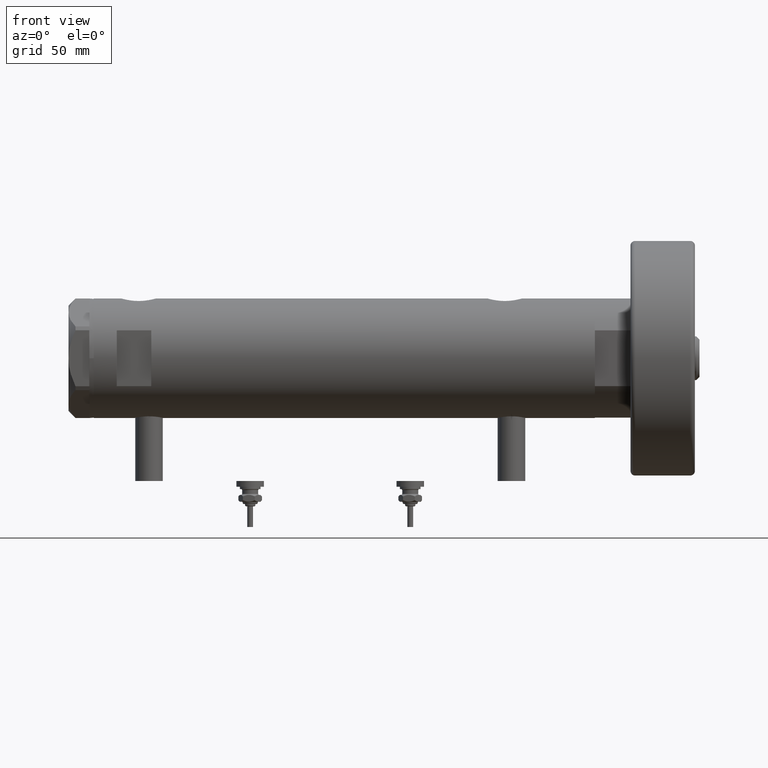
[diagram: clean part render]
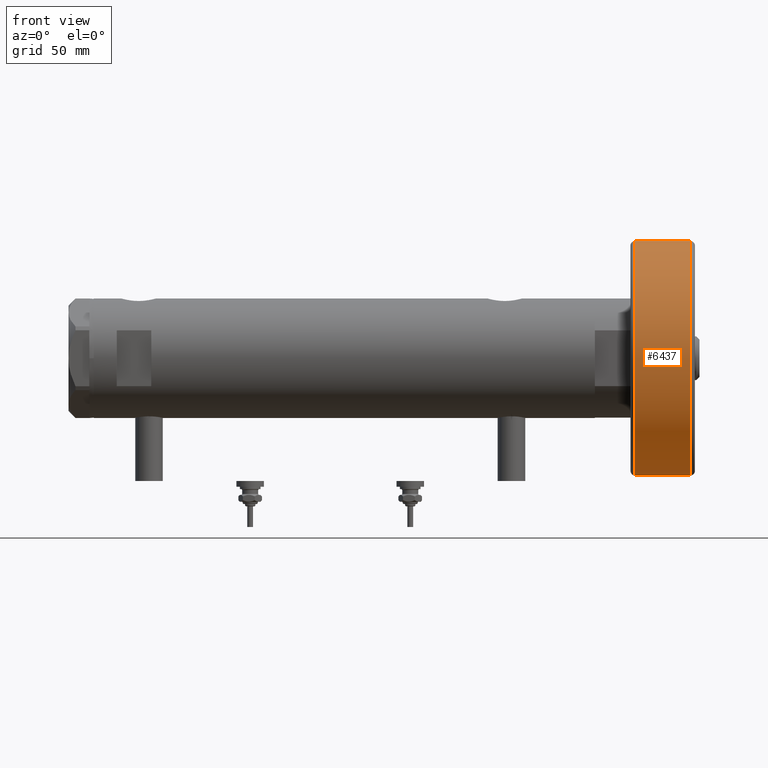
[diagram: same view with one face highlighted and labeled with its STEP entity id]
A machine part, front view. The second image highlights one B-rep face of the part: STEP entity #6437.
In plain terms, the highlighted cylindrical surface (partial cylindrical patch) has radius 51 mm, axis along (-1, -0, 0).
Its self-contained STEP definition (entity closure, byte-faithful):
#100 = DIRECTION ( 'NONE',  ( -0.000000000000000000, -0.000000000000000000, -1.000000000000000000 ) ) ;
#121 = DIRECTION ( 'NONE',  ( 0.000000000000000000, 0.000000000000000000, 1.000000000000000000 ) ) ;
#367 = VERTEX_POINT ( 'NONE', #2523 ) ;
#528 = CIRCLE ( 'NONE', #3151, 50.99999999999999289 ) ;
#608 = CARTESIAN_POINT ( 'NONE',  ( 0.000000000000000000, 0.000000000000000000, 1.999999999999998224 ) ) ;
#972 = CARTESIAN_POINT ( 'NONE',  ( 0.000000000000000000, 0.000000000000000000, 26.00000000000000355 ) ) ;
#1113 = CARTESIAN_POINT ( 'NONE',  ( 50.99999999999999289, 6.245698675651499656E-15, 1.999999999999998224 ) ) ;
#1637 = LINE ( 'NONE', #2641, #2387 ) ;
#1641 = CARTESIAN_POINT ( 'NONE',  ( 50.99999999999999289, 6.245698675651499656E-15, 28.00000000000000000 ) ) ;
#2089 = CARTESIAN_POINT ( 'NONE',  ( -50.99999999999999289, 0.000000000000000000, 1.999999999999998224 ) ) ;
#2153 = EDGE_CURVE ( 'NONE', #5592, #6383, #4416, .T. ) ;
#2176 = DIRECTION ( 'NONE',  ( 1.000000000000000000, 0.000000000000000000, 0.000000000000000000 ) ) ;
#2387 = VECTOR ( 'NONE', #6307, 1000.000000000000000 ) ;
#2409 = EDGE_CURVE ( 'NONE', #367, #6383, #6347, .T. ) ;
#2523 = CARTESIAN_POINT ( 'NONE',  ( 50.99999999999999289, 6.245698675651499656E-15, 26.00000000000000355 ) ) ;
#2555 = CARTESIAN_POINT ( 'NONE',  ( 0.000000000000000000, 0.000000000000000000, 28.00000000000000000 ) ) ;
#2625 = CYLINDRICAL_SURFACE ( 'NONE', #2728, 50.99999999999999289 ) ;
#2641 = CARTESIAN_POINT ( 'NONE',  ( -50.99999999999999289, 0.000000000000000000, 28.00000000000000000 ) ) ;
#2728 = AXIS2_PLACEMENT_3D ( 'NONE', #2555, #4621, #3704 ) ;
#3151 = AXIS2_PLACEMENT_3D ( 'NONE', #972, #3198, #5787 ) ;
#3198 = DIRECTION ( 'NONE',  ( -0.000000000000000000, -0.000000000000000000, -1.000000000000000000 ) ) ;
#3251 = ORIENTED_EDGE ( 'NONE', *, *, #4430, .T. ) ;
#3574 = EDGE_CURVE ( 'NONE', #367, #5666, #528, .T. ) ;
#3663 = AXIS2_PLACEMENT_3D ( 'NONE', #608, #121, #2176 ) ;
#3690 = ORIENTED_EDGE ( 'NONE', *, *, #3574, .T. ) ;
#3704 = DIRECTION ( 'NONE',  ( -1.000000000000000000, 0.000000000000000000, 0.000000000000000000 ) ) ;
#3916 = ORIENTED_EDGE ( 'NONE', *, *, #2409, .F. ) ;
#4095 = CARTESIAN_POINT ( 'NONE',  ( -50.99999999999999289, 0.000000000000000000, 26.00000000000000355 ) ) ;
#4207 = FACE_OUTER_BOUND ( 'NONE', #5104, .T. ) ;
#4416 = CIRCLE ( 'NONE', #3663, 50.99999999999999289 ) ;
#4430 = EDGE_CURVE ( 'NONE', #5666, #5592, #1637, .T. ) ;
#4621 = DIRECTION ( 'NONE',  ( -0.000000000000000000, -0.000000000000000000, -1.000000000000000000 ) ) ;
#4757 = ORIENTED_EDGE ( 'NONE', *, *, #2153, .T. ) ;
#4756 = VECTOR ( 'NONE', #100, 1000.000000000000000 ) ;
#5104 = EDGE_LOOP ( 'NONE', ( #3916, #3690, #3251, #4757 ) ) ;
#5592 = VERTEX_POINT ( 'NONE', #2089 ) ;
#5666 = VERTEX_POINT ( 'NONE', #4095 ) ;
#5787 = DIRECTION ( 'NONE',  ( 1.000000000000000000, 0.000000000000000000, 0.000000000000000000 ) ) ;
#6307 = DIRECTION ( 'NONE',  ( -0.000000000000000000, -0.000000000000000000, -1.000000000000000000 ) ) ;
#6347 = LINE ( 'NONE', #1641, #4756 ) ;
#6383 = VERTEX_POINT ( 'NONE', #1113 ) ;
#6437 = ADVANCED_FACE ( 'NONE', ( #4207 ), #2625, .T. ) ;